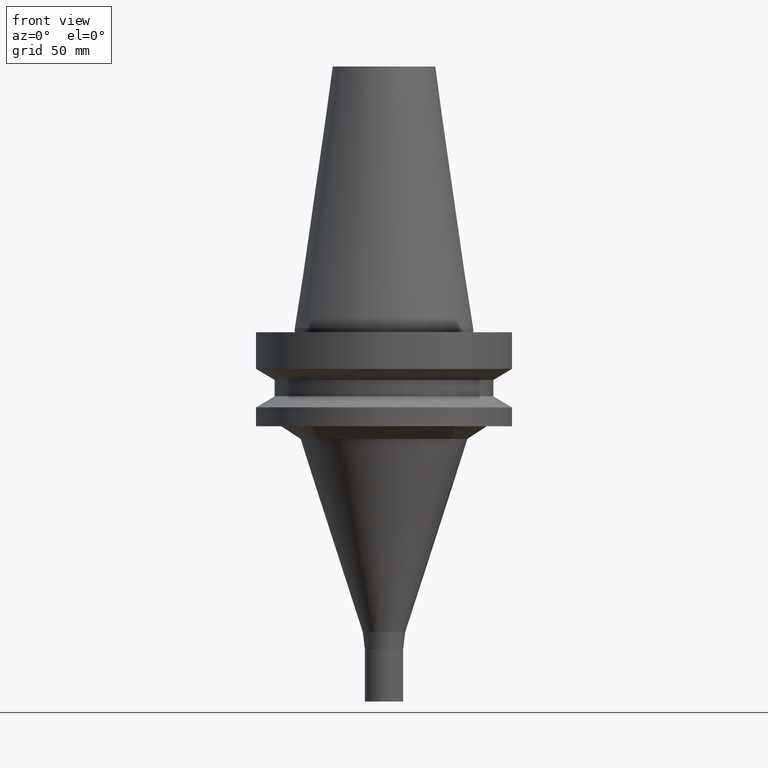
[diagram: clean part render]
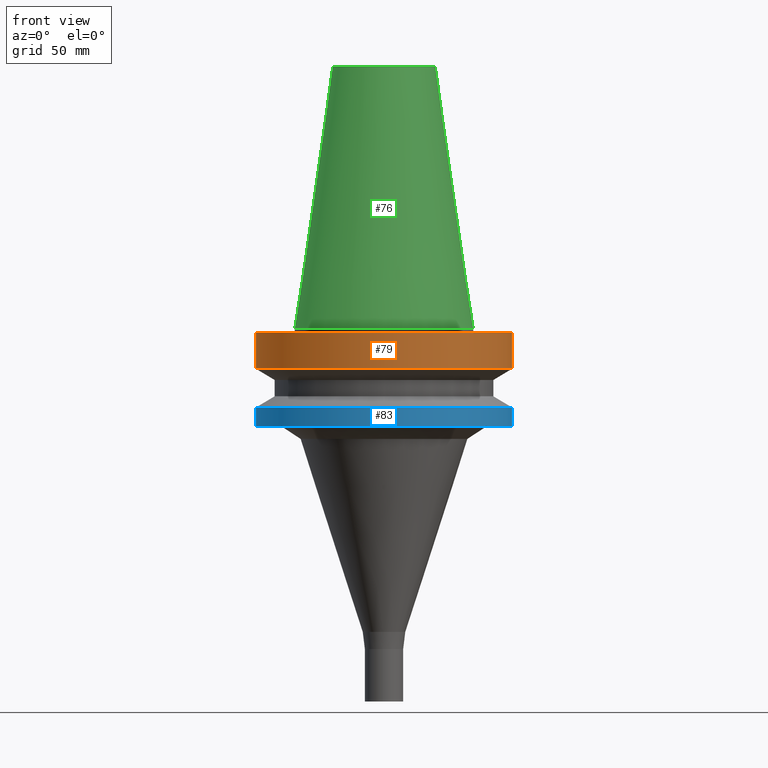
[diagram: same view with three faces highlighted in distinct colors, each labeled with its STEP entity id]
A machine part, front view with three faces highlighted in distinct colors.
Their STEP definitions:

[orange] entity #79 — the highlighted cylindrical surface (bore or boss wall) has radius 50 mm, axis along (-0, -0, 1).
#79=ADVANCED_FACE('',(#102,#103),#104,.T.);
#102=FACE_BOUND('',#145,.T.);
#103=FACE_BOUND('',#146,.T.);
#104=CYLINDRICAL_SURFACE('',#147,50.0);
#145=EDGE_LOOP('',(#196));
#146=EDGE_LOOP('',(#197));
#147=AXIS2_PLACEMENT_3D('',#198,#199,#200);
#196=ORIENTED_EDGE('',*,*,#254,.F.);
#197=ORIENTED_EDGE('',*,*,#253,.T.);
#198=CARTESIAN_POINT('',(5.26598123633362E-016,1.05319624726672E-015,-8.59999999999999));
#199=DIRECTION('',(-6.12323399573677E-017,-1.22464679914735E-016,1.0));
#200=DIRECTION('',(-1.23259516440783E-032,1.0,1.22464679914735E-016));
#253=EDGE_CURVE('',#270,#270,#271,.T.);
#254=EDGE_CURVE('',#272,#272,#273,.T.);
#270=VERTEX_POINT('',#298);
#271=CIRCLE('',#299,50.0);
#272=VERTEX_POINT('',#300);
#273=CIRCLE('',#301,50.0);
#298=CARTESIAN_POINT('',(9.18485099360509E-017,50.0,-1.49999999999999));
#299=AXIS2_PLACEMENT_3D('',#329,#330,#331);
#300=CARTESIAN_POINT('',(9.61347737330672E-016,50.0,-15.7));
#301=AXIS2_PLACEMENT_3D('',#332,#333,#334);
#329=CARTESIAN_POINT('',(9.18485099360515E-017,1.83697019872103E-016,-1.5));
#330=DIRECTION('',(6.12323399573677E-017,1.22464679914735E-016,-1.0));
#331=DIRECTION('',(-1.23259516440783E-032,1.0,1.22464679914735E-016));
#332=CARTESIAN_POINT('',(9.61347737330672E-016,1.92269547466134E-015,-15.7));
#333=DIRECTION('',(6.12323399573677E-017,1.22464679914735E-016,-1.0));
#334=DIRECTION('',(-1.23259516440783E-032,1.0,1.22464679914735E-016));

[blue] entity #83 — the highlighted cylindrical surface (bore or boss wall) has radius 50 mm, axis along (-0, -0, 1).
#83=ADVANCED_FACE('',(#114,#115),#116,.T.);
#114=FACE_BOUND('',#157,.T.);
#115=FACE_BOUND('',#158,.T.);
#116=CYLINDRICAL_SURFACE('',#159,50.0);
#157=EDGE_LOOP('',(#216));
#158=EDGE_LOOP('',(#217));
#159=AXIS2_PLACEMENT_3D('',#218,#219,#220);
#216=ORIENTED_EDGE('',*,*,#258,.F.);
#217=ORIENTED_EDGE('',*,*,#257,.T.);
#218=CARTESIAN_POINT('',(2.10333087753558E-015,4.20666175507116E-015,-34.35));
#219=DIRECTION('',(-6.12323399573677E-017,-1.22464679914735E-016,1.0));
#220=DIRECTION('',(-1.23259516440783E-032,1.0,1.22464679914735E-016));
#257=EDGE_CURVE('',#278,#278,#279,.T.);
#258=EDGE_CURVE('',#280,#280,#281,.T.);
#278=VERTEX_POINT('',#306);
#279=CIRCLE('',#307,50.0);
#280=VERTEX_POINT('',#308);
#281=CIRCLE('',#309,50.0);
#306=CARTESIAN_POINT('',(1.87983283669119E-015,50.0,-30.7));
#307=AXIS2_PLACEMENT_3D('',#341,#342,#343);
#308=CARTESIAN_POINT('',(2.32682891837997E-015,50.0,-38.0));
#309=AXIS2_PLACEMENT_3D('',#344,#345,#346);
#341=CARTESIAN_POINT('',(1.87983283669119E-015,3.75966567338237E-015,-30.7));
#342=DIRECTION('',(6.12323399573677E-017,1.22464679914735E-016,-1.0));
#343=DIRECTION('',(-1.23259516440783E-032,1.0,1.22464679914735E-016));
#344=CARTESIAN_POINT('',(2.32682891837997E-015,4.65365783675994E-015,-38.0));
#345=DIRECTION('',(6.12323399573677E-017,1.22464679914735E-016,-1.0));
#346=DIRECTION('',(-1.23259516440783E-032,1.0,1.22464679914735E-016));

[green] entity #76 — the highlighted conical surface has half-angle 8.297 deg.
#76=ADVANCED_FACE('',(#93,#94),#95,.T.);
#93=FACE_BOUND('',#136,.T.);
#94=FACE_BOUND('',#137,.T.);
#95=CONICAL_SURFACE('',#138,27.5020833325942,0.144812498253157);
#136=EDGE_LOOP('',(#181));
#137=EDGE_LOOP('',(#182));
#138=AXIS2_PLACEMENT_3D('',#183,#184,#185);
#181=ORIENTED_EDGE('',*,*,#251,.F.);
#182=ORIENTED_EDGE('',*,*,#250,.T.);
#183=CARTESIAN_POINT('',(-3.11672610383001E-015,-6.23345220766003E-015,50.9));
#184=DIRECTION('',(6.12323399573677E-017,1.22464679914735E-016,-1.0));
#185=DIRECTION('',(-1.23259516440783E-032,1.0,1.22464679914735E-016));
#250=EDGE_CURVE('',#264,#264,#265,.T.);
#251=EDGE_CURVE('',#266,#266,#267,.T.);
#264=VERTEX_POINT('',#292);
#265=CIRCLE('',#293,20.0791666651885);
#266=VERTEX_POINT('',#294);
#267=CIRCLE('',#295,34.925);
#292=CARTESIAN_POINT('',(-6.23345220766003E-015,20.0791666651884,101.8));
#293=AXIS2_PLACEMENT_3D('',#320,#321,#322);
#294=CARTESIAN_POINT('',(-4.30483861169435E-031,34.925,4.27707894602213E-015));
#295=AXIS2_PLACEMENT_3D('',#323,#324,#325);
#320=CARTESIAN_POINT('',(-6.23345220766003E-015,-1.24669044153201E-014,101.8));
#321=DIRECTION('',(6.12323399573677E-017,1.22464679914735E-016,-1.0));
#322=DIRECTION('',(-1.23259516440783E-032,1.0,1.22464679914735E-016));
#323=CARTESIAN_POINT('',(0.0,0.0,0.0));
#324=DIRECTION('',(6.12323399573677E-017,1.22464679914735E-016,-1.0));
#325=DIRECTION('',(-1.23259516440783E-032,1.0,1.22464679914735E-016));